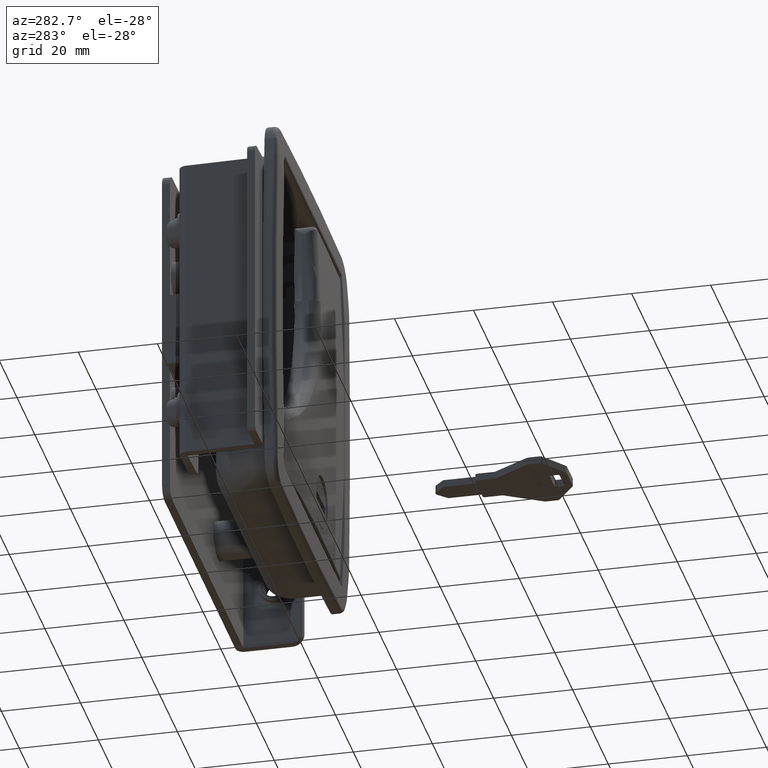
[diagram: clean part render]
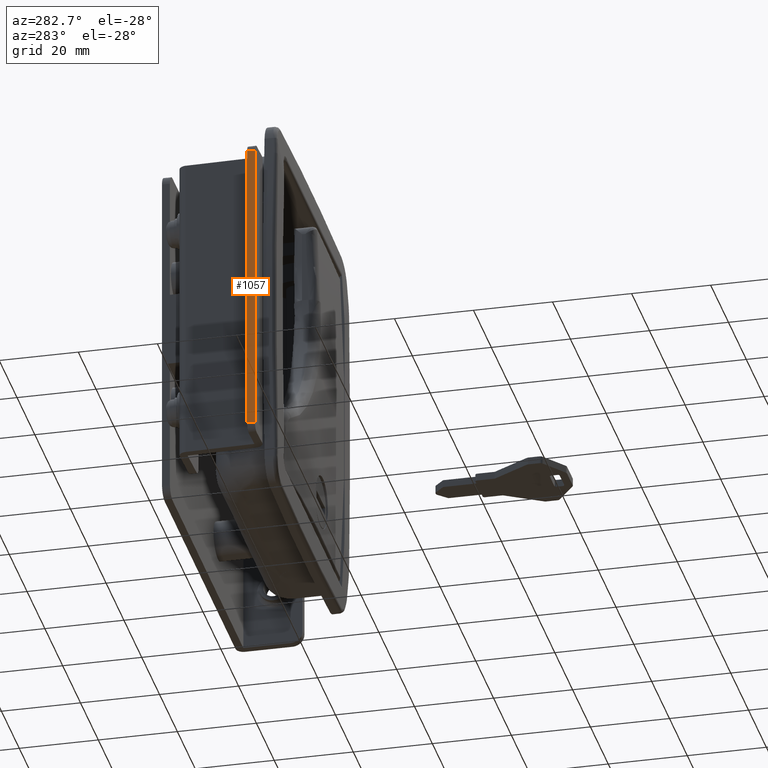
[diagram: same view with one face highlighted and labeled with its STEP entity id]
A machine part, auxiliary view. The second image highlights one B-rep face of the part: STEP entity #1057.
In plain terms, the highlighted face is a freeform B-spline surface patch.
Its self-contained STEP definition (entity closure, byte-faithful):
#638=CARTESIAN_POINT('',(-45.902721567025097,-28.020558442900199,38.0));
#639=VERTEX_POINT('',#638);
#661=CARTESIAN_POINT('',(-45.856718059574497,-26.024088388703952,38.0));
#662=VERTEX_POINT('',#661);
#674=CARTESIAN_POINT('',(-45.856718059574497,-26.024088388703952,38.0));
#675=CARTESIAN_POINT('',(-45.902721567025097,-28.020558442900199,38.0));
#676=QUASI_UNIFORM_CURVE('',1,(#674,#675),.UNSPECIFIED.,.F.,.U.);
#677=EDGE_CURVE('',#662,#639,#676,.T.);
#698=CARTESIAN_POINT('',(-45.902721567025097,-28.020558442900199,-37.999699999999997));
#699=VERTEX_POINT('',#698);
#712=CARTESIAN_POINT('',(-45.856718059574497,-26.024088388703952,-37.999699999999997));
#713=VERTEX_POINT('',#712);
#714=CARTESIAN_POINT('',(-45.902721567025097,-28.020558442900199,-37.999699999999997));
#715=CARTESIAN_POINT('',(-45.856718059574497,-26.024088388703952,-37.999699999999997));
#716=QUASI_UNIFORM_CURVE('',1,(#714,#715),.UNSPECIFIED.,.F.,.U.);
#717=EDGE_CURVE('',#699,#713,#716,.T.);
#1029=CARTESIAN_POINT('',(-45.856718059574497,-26.024088388703952,-37.999699999999997));
#1030=CARTESIAN_POINT('',(-45.856718059574497,-26.024088388703952,38.0));
#1031=QUASI_UNIFORM_CURVE('',1,(#1029,#1030),.UNSPECIFIED.,.F.,.U.);
#1032=EDGE_CURVE('',#713,#662,#1031,.T.);
#1042=CARTESIAN_POINT('',(-45.905019463786722,-28.120283057966329,41.796184596173532));
#1043=CARTESIAN_POINT('',(-45.854420171861513,-25.924364166334151,41.796184596173532));
#1044=CARTESIAN_POINT('',(-45.905019463786722,-28.120283057966329,-41.795881198722192));
#1045=CARTESIAN_POINT('',(-45.854420171861513,-25.924364166334151,-41.795881198722192));
#1046=B_SPLINE_SURFACE_WITH_KNOTS('',1,1,((#1042,#1044),(#1043,#1045)),.UNSPECIFIED.,.F.,.F.,.U.,(2,2),(2,2),(0.0,2.196501779414352),(0.0,83.592065794895717),.UNSPECIFIED.);
#1047=CARTESIAN_POINT('',(-45.902721567025097,-28.020558442900199,-37.999699999999997));
#1048=CARTESIAN_POINT('',(-45.902721567025097,-28.020558442900199,38.0));
#1049=QUASI_UNIFORM_CURVE('',1,(#1047,#1048),.UNSPECIFIED.,.F.,.U.);
#1050=EDGE_CURVE('',#699,#639,#1049,.T.);
#1051=ORIENTED_EDGE('',*,*,#1050,.T.);
#1052=ORIENTED_EDGE('',*,*,#677,.F.);
#1053=ORIENTED_EDGE('',*,*,#1032,.F.);
#1054=ORIENTED_EDGE('',*,*,#717,.F.);
#1055=EDGE_LOOP('',(#1051,#1052,#1053,#1054));
#1056=FACE_OUTER_BOUND('',#1055,.T.);
#1057=ADVANCED_FACE('',(#1056),#1046,.T.);